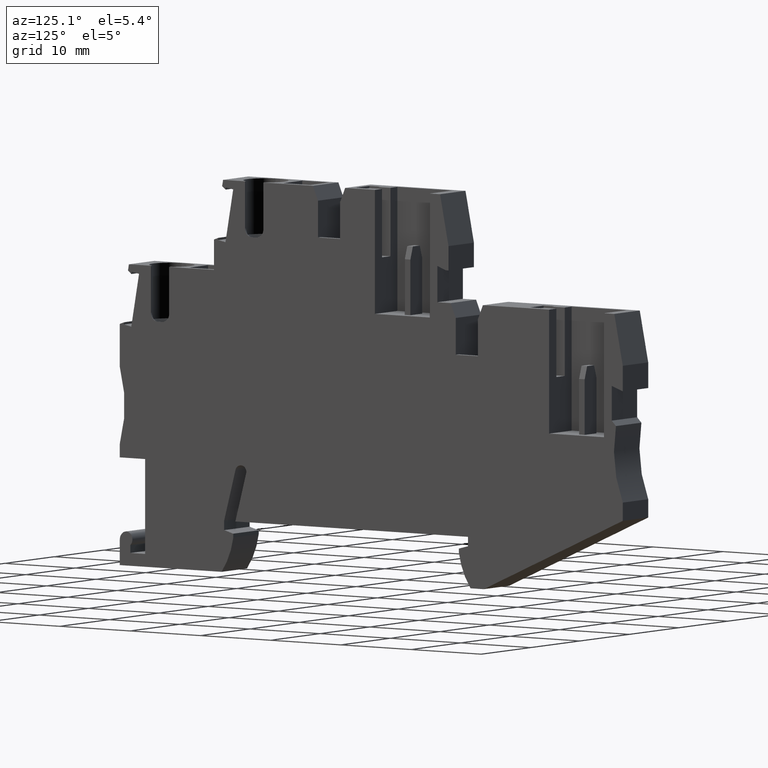
[diagram: clean part render]
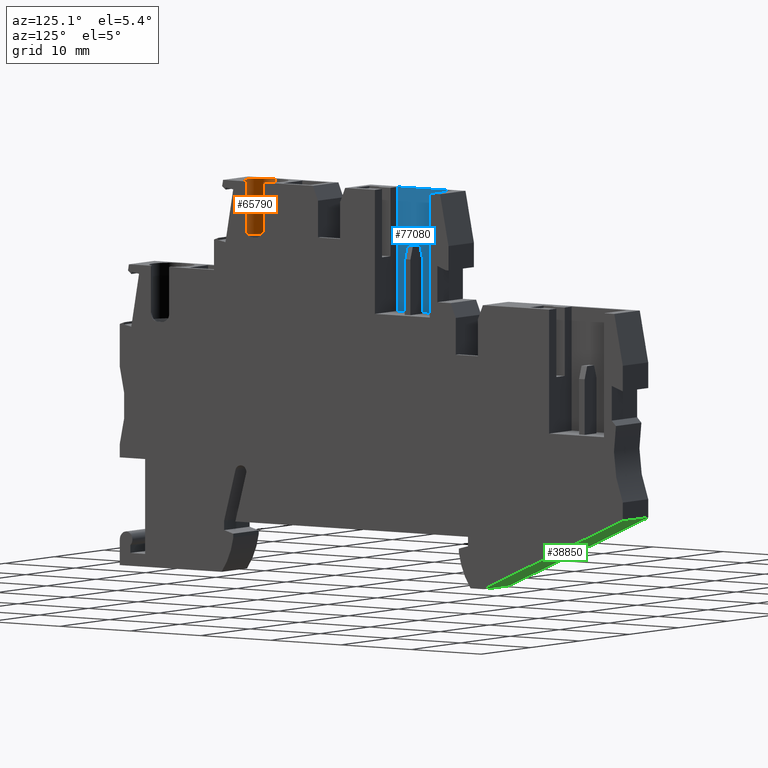
[diagram: same view with three faces highlighted in distinct colors, each labeled with its STEP entity id]
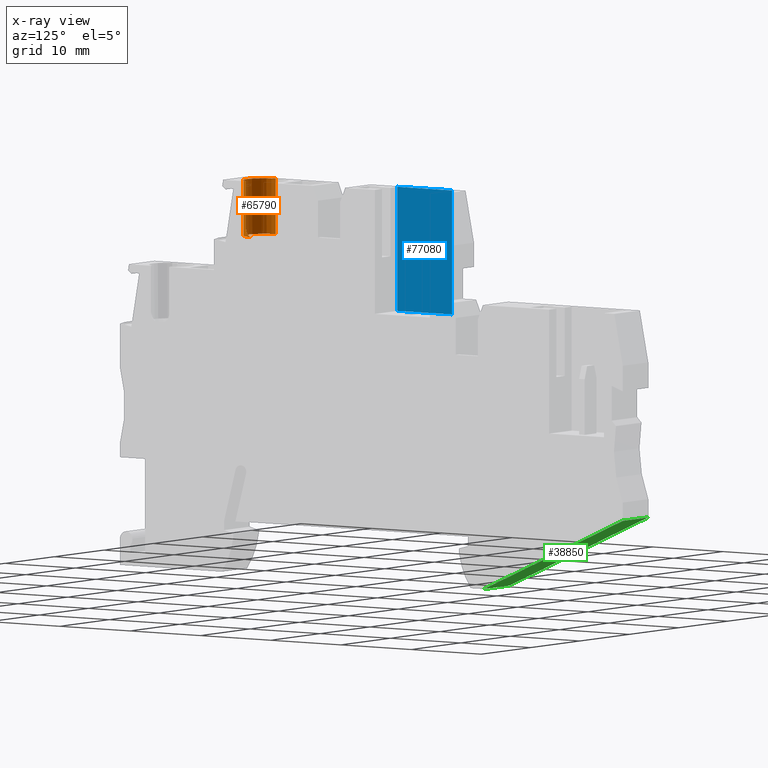
[diagram: x-ray of the same camera — body ghosted, the three highlighted faces saturated]
A machine part, auxiliary view with three faces highlighted in distinct colors.
The next image is the same camera in x-ray (body ghosted, the three faces saturated) — at least one of them is partly hidden behind the body in this view.
Their STEP definitions:

[orange] entity #65790 — the highlighted cylindrical surface (edge-blend (fillet) strip) has radius 2.4 mm, axis along (0, -0, -1).
#12680=CARTESIAN_POINT('',(154.143635451665,35.8467138221823,
53.6699999999994));
#12690=VERTEX_POINT('',#12680);
#63830=CARTESIAN_POINT('',(154.143635451665,35.8467138221823,51.27));
#63840=DIRECTION('',(0.,-1.,0.));
#63850=DIRECTION('',(-1.,0.,0.));
#63860=AXIS2_PLACEMENT_3D('',#63830,#63840,#63850);
#63870=CIRCLE('',#63860,2.40000000000001);
#63880=CARTESIAN_POINT('',(154.143635451665,35.8467138221823,48.87));
#63890=VERTEX_POINT('',#63880);
#63900=EDGE_CURVE('',#12690,#63890,#63870,.T.);
#64380=CARTESIAN_POINT('',(154.143635451664,36.8467138221824,
53.6699999999994));
#64390=DIRECTION('',(0.,0.,1.));
#64400=DIRECTION('',(1.,0.,0.));
#64410=AXIS2_PLACEMENT_3D('',#64380,#64390,#64400);
#64420=CYLINDRICAL_SURFACE('',#64410,1.);
#64430=CARTESIAN_POINT('',(154.143635451665,35.5510178221823,51.27));
#64440=DIRECTION('',(0.,1.,0.));
#64450=DIRECTION('',(-1.,0.,0.));
#64460=AXIS2_PLACEMENT_3D('',#64430,#64440,#64450);
#64470=CYLINDRICAL_SURFACE('',#64460,2.4);
#64480=CARTESIAN_POINT('',(154.143635451665,35.8467138221824,53.67));
#64490=CARTESIAN_POINT('',(154.11066647474,35.8467138221823,53.67));
#64500=CARTESIAN_POINT('',(154.077730045507,35.8483423233445,
53.6693200824832));
#64510=CARTESIAN_POINT('',(154.0448887327,35.8516012227778,
53.6679676990096));
#64520=CARTESIAN_POINT('',(154.028476506046,35.853229835996,
53.6672918544043));
#64530=CARTESIAN_POINT('',(154.01210688179,35.8552645729343,
53.6664487673962));
#64540=CARTESIAN_POINT('',(153.99581428809,35.8576997153064,
53.6654433626365));
#64550=CARTESIAN_POINT('',(153.979521675002,35.8601348605766,
53.6644379566803));
#64560=CARTESIAN_POINT('',(153.963306444248,35.8629703491068,
53.6632702648329));
#64570=CARTESIAN_POINT('',(153.947201716203,35.8661967200506,
53.6619476974993));
#64580=CARTESIAN_POINT('',(153.931104127683,35.8694216606847,
53.6606257164843));
#64590=CARTESIAN_POINT('',(153.915086202045,35.8730429286424,
53.6591466143504));
#64600=CARTESIAN_POINT('',(153.899159970897,35.8770583476434,
53.6575158092257));
#64610=CARTESIAN_POINT('',(153.883235236882,35.8810733891778,
53.6558851574037));
#64620=CARTESIAN_POINT('',(153.867408866653,35.8854811518593,
53.6541033935469));
#64630=CARTESIAN_POINT('',(153.851711195558,35.890272381896,
53.6521797221654));
#64640=CARTESIAN_POINT('',(153.83601353586,35.8950636084542,
53.6502560521806));
#64650=CARTESIAN_POINT('',(153.820444856338,35.9002382185183,
53.6481905177208));
#64660=CARTESIAN_POINT('',(153.805034580272,35.9057837238795,
53.6459944128493));
#64670=CARTESIAN_POINT('',(153.789624290894,35.9113292340308,
53.6437983060809));
#64680=CARTESIAN_POINT('',(153.774372664614,35.9172455375734,
53.6414716804355));
#64690=CARTESIAN_POINT('',(153.759307352587,35.9235172492578,
53.6390276301172));
#64700=CARTESIAN_POINT('',(153.744235722746,35.9297915910576,
53.6365825548579));
#64710=CARTESIAN_POINT('',(153.729377976049,35.9364086467791,
53.6340249413995));
#64720=CARTESIAN_POINT('',(153.714679330433,35.9433884953716,
53.6313548327299));
#64730=CARTESIAN_POINT('',(153.699977338641,35.9503699329402,
53.6286841162048));
#64740=CARTESIAN_POINT('',(153.685432282854,35.9577168956879,
53.6258999398686));
#64750=CARTESIAN_POINT('',(153.67106747842,35.9654195973811,
53.6230149830934));
#64760=CARTESIAN_POINT('',(153.642337544312,35.9808251751675,
53.6172450042235));
#64770=CARTESIAN_POINT('',(153.614331425884,35.9976548675379,
53.6110710094023));
#64780=CARTESIAN_POINT('',(153.587229719121,36.0158030803915,
53.6046118865427));
#64790=CARTESIAN_POINT('',(153.560128179613,36.0339511812458,
53.5981528035448));
#64800=CARTESIAN_POINT('',(153.533935683992,36.0534147719372,
53.5914100922132));
#64810=CARTESIAN_POINT('',(153.508813125142,36.0740556741227,
53.5845195211416));
#64820=CARTESIAN_POINT('',(153.483690372786,36.0946967352948,
53.5776288969954));
#64830=CARTESIAN_POINT('',(153.459641293583,36.1165117357039,
53.5705919902925));
#64840=CARTESIAN_POINT('',(153.436795267824,36.1393405441262,
53.5635511667513));
#64850=CARTESIAN_POINT('',(153.425368786174,36.1507584144927,
53.5600296859548));
#64860=CARTESIAN_POINT('',(153.414257621565,36.1624133382051,
53.5565120751058));
#64870=CARTESIAN_POINT('',(153.403433043169,36.1743297098944,
53.5530024954993));
#64880=CARTESIAN_POINT('',(153.392600792363,36.186254527851,
53.5494904283194));
#64890=CARTESIAN_POINT('',(153.382030972683,36.1984697031936,
53.5459781743999));
#64900=CARTESIAN_POINT('',(153.371743922596,36.2109595714282,
53.5424839861593));
#64910=CARTESIAN_POINT('',(153.35116962355,36.2359395493534,
53.5354955421278));
#64920=CARTESIAN_POINT('',(153.331729084111,36.2620187169355,
53.5285797757368));
#64930=CARTESIAN_POINT('',(153.313570086836,36.2890477122984,
53.5218862071853));
#64940=CARTESIAN_POINT('',(153.295411161358,36.316076600794,
53.5151926650988));
#64950=CARTESIAN_POINT('',(153.278536754856,36.3440511029265,
53.5087230284729));
#64960=CARTESIAN_POINT('',(153.263066645539,36.3727954983341,
53.5026214586619));
#64970=CARTESIAN_POINT('',(153.247596369229,36.4015402040248,
53.4965198229871));
#64980=CARTESIAN_POINT('',(153.233532908562,36.4310497435877,
53.4907878900435));
#64990=CARTESIAN_POINT('',(153.220960087853,36.4611361088553,
53.4855518890364));
#65000=CARTESIAN_POINT('',(153.214670228971,36.4761875437053,
53.4829324523802));
#65010=CARTESIAN_POINT('',(153.208767114614,36.4913438175261,
53.4804428540562));
#65020=CARTESIAN_POINT('',(153.203214912804,36.5067002782033,
53.4780781711904));
#65030=CARTESIAN_POINT('',(153.197662082815,36.5220584763192,
53.475713220783));
#65040=CARTESIAN_POINT('',(153.19246553917,36.5376086634623,
53.4734753101224));
#65050=CARTESIAN_POINT('',(153.187642838166,36.5533230879453,
53.4713809581566));
#65060=CARTESIAN_POINT('',(153.18282015862,36.5690374425071,
53.4692866155096));
#65070=CARTESIAN_POINT('',(153.17837144304,36.5849157457776,
53.467335907174));
#65080=CARTESIAN_POINT('',(153.174311572886,36.6009268859364,
53.465543490352));
#65090=CARTESIAN_POINT('',(153.170251713147,36.6169379850196,
53.4637510781284));
#65100=CARTESIAN_POINT('',(153.166580804574,36.6330815866822,
53.4621170257099));
#65110=CARTESIAN_POINT('',(153.163310351632,36.6493241105781,
53.4606534865755));
#65120=CARTESIAN_POINT('',(153.160039900854,36.6655666237305,
53.4591899484091));
#65130=CARTESIAN_POINT('',(153.157169988953,36.6819076873326,
53.4578969789122));
#65140=CARTESIAN_POINT('',(153.154708262072,36.6983122935999,
53.4567837144271));
#65150=CARTESIAN_POINT('',(153.152246531866,36.7147169220294,
53.455670448438));
#65160=CARTESIAN_POINT('',(153.150193040701,36.7311846964237,
53.4547369248409));
#65170=CARTESIAN_POINT('',(153.148551345824,36.7476803818477,
53.4539889244917));
#65180=CARTESIAN_POINT('',(153.14690964511,36.7641761259325,
53.4532409214825));
#65190=CARTESIAN_POINT('',(153.145679759883,36.7806993766464,
53.4526784572148));
#65200=CARTESIAN_POINT('',(153.144861218736,36.7972160279112,
53.4523038357744));
#65210=CARTESIAN_POINT('',(153.144042672657,36.8137327786933,
53.4519292120768));
#65220=CARTESIAN_POINT('',(153.143635451664,36.8302425394107,
53.4517424229267));
#65230=CARTESIAN_POINT('',(153.143635451664,36.8467138221824,
53.4517424229267));
#65240=B_SPLINE_CURVE_WITH_KNOTS('',3,(#64480,#64490,#64500,#64510,
#64520,#64530,#64540,#64550,#64560,#64570,#64580,#64590,#64600,#64610,
#64620,#64630,#64640,#64650,#64660,#64670,#64680,#64690,#64700,#64710,
#64720,#64730,#64740,#64750,#64760,#64770,#64780,#64790,#64800,#64810,
#64820,#64830,#64840,#64850,#64860,#64870,#64880,#64890,#64900,#64910,
#64920,#64930,#64940,#64950,#64960,#64970,#64980,#64990,#65000,#65010,
#65020,#65030,#65040,#65050,#65060,#65070,#65080,#65090,#65100,#65110,
#65120,#65130,#65140,#65150,#65160,#65170,#65180,#65190,#65200,#65210,
#65220,#65230),.UNSPECIFIED.,.F.,.F.,(4,3,3,3,3,3,3,3,3,3,3,3,3,3,3,3,3,
3,3,3,3,3,3,3,3,4),(0.,0.0989356926831357,0.14845786217977,
0.197936868344418,0.247395812215813,0.296944026892422,0.346523364318057,
0.396066517208509,0.445522692013702,0.495095098486007,0.594663763414727,
0.694433383674864,0.793911204421631,0.843398673863151,0.892967270207281,
0.992535371394343,1.09225157442244,1.19163259982034,1.24110346176739,
1.29071772469118,1.34050215845989,1.39038019973507,1.44027424348276,
1.49010933866209,1.5398169636435,1.58933923289506),.UNSPECIFIED.);
#65250=SURFACE_CURVE('',#65240,(#64470,#64420),.CURVE_3D.);
#65260=CARTESIAN_POINT('',(153.143635451665,36.8467138221824,
53.4517424229264));
#65270=VERTEX_POINT('',#65260);
#65280=EDGE_CURVE('',#12690,#65270,#65250,.T.);
#65470=CARTESIAN_POINT('',(154.143635451665,42.346713822168,
51.2699999999994));
#65480=DIRECTION('',(-1.1550482792444E-13,-1.,0.));
#65490=DIRECTION('',(-1.,1.1550482792444E-13,0.));
#65500=AXIS2_PLACEMENT_3D('',#65470,#65480,#65490);
#65510=CYLINDRICAL_SURFACE('',#65500,2.4);
#65520=CARTESIAN_POINT('',(154.143635451665,42.346713822168,
51.2699999999994));
#65530=DIRECTION('',(-1.1550482792444E-13,-1.,0.));
#65540=DIRECTION('',(-1.,1.1550482792444E-13,0.));
#65550=AXIS2_PLACEMENT_3D('',#65520,#65530,#65540);
#65560=CIRCLE('',#65550,2.4);
#65570=CARTESIAN_POINT('',(153.143635451665,42.3467138221681,
53.4517424229264));
#65580=VERTEX_POINT('',#65570);
#65590=CARTESIAN_POINT('',(154.143635451665,42.346713822168,
48.8699999999994));
#65600=VERTEX_POINT('',#65590);
#65610=EDGE_CURVE('',#65580,#65600,#65560,.T.);
#65620=ORIENTED_EDGE('',*,*,#65610,.F.);
#65630=CARTESIAN_POINT('',(154.143635451665,35.5510178221823,48.87));
#65640=DIRECTION('',(3.21130898074443E-44,1.,4.3387349787156E-29));
#65650=VECTOR('',#65640,1.);
#65660=LINE('',#65630,#65650);
#65670=EDGE_CURVE('',#63890,#65600,#65660,.T.);
#65680=ORIENTED_EDGE('',*,*,#65670,.T.);
#65690=ORIENTED_EDGE('',*,*,#63900,.T.);
#65700=ORIENTED_EDGE('',*,*,#65280,.F.);
#65710=CARTESIAN_POINT('',(153.143635451665,42.3467138221681,
53.4517424229264));
#65720=DIRECTION('',(1.1550482792444E-13,1.,0.));
#65730=VECTOR('',#65720,1.);
#65740=LINE('',#65710,#65730);
#65750=EDGE_CURVE('',#65270,#65580,#65740,.T.);
#65760=ORIENTED_EDGE('',*,*,#65750,.F.);
#65770=EDGE_LOOP('',(#65760,#65700,#65690,#65680,#65620));
#65780=FACE_OUTER_BOUND('',#65770,.T.);
#65790=ADVANCED_FACE('',(#65780),#65510,.F.);

[blue] entity #77080 — the highlighted planar face has unit normal (-1, 0, -0).
#70970=CARTESIAN_POINT('',(179.418635451668,42.3467138221656,49.12));
#70980=VERTEX_POINT('',#70970);
#71010=CARTESIAN_POINT('',(14.196323,42.3467138221656,49.12));
#71020=DIRECTION('',(-1.,-2.77555756154494E-17,3.15544362088405E-30));
#71030=VECTOR('',#71020,1.);
#71040=LINE('',#71010,#71030);
#71050=CARTESIAN_POINT('',(171.618635451668,42.3467138221656,49.12));
#71060=VERTEX_POINT('',#71050);
#71070=EDGE_CURVE('',#70980,#71060,#71040,.T.);
#74450=CARTESIAN_POINT('',(171.618635451668,27.8467138221787,49.12));
#74460=VERTEX_POINT('',#74450);
#74490=CARTESIAN_POINT('',(171.618635451668,27.8467138221787,49.12));
#74500=DIRECTION('',(1.,0.,0.));
#74510=VECTOR('',#74500,1.);
#74520=LINE('',#74490,#74510);
#74530=CARTESIAN_POINT('',(179.418635451668,27.8467138221787,49.12));
#74540=VERTEX_POINT('',#74530);
#74550=EDGE_CURVE('',#74460,#74540,#74520,.T.);
#76720=CARTESIAN_POINT('',(171.618635451668,-15.176449,49.1200000000004)
);
#76730=DIRECTION('',(2.77555756154498E-17,-1.,7.29054583017612E-15));
#76740=VECTOR('',#76730,1.);
#76750=LINE('',#76720,#76740);
#76760=EDGE_CURVE('',#71060,#74460,#76750,.T.);
#76920=CARTESIAN_POINT('',(179.418635451668,42.3467138221656,49.12));
#76930=DIRECTION('',(-2.95309032481669E-30,-7.29054583017612E-15,-1.));
#76940=DIRECTION('',(1.,2.77555756154494E-17,-3.15544362088405E-30));
#76950=AXIS2_PLACEMENT_3D('',#76920,#76930,#76940);
#76960=PLANE('',#76950);
#76970=ORIENTED_EDGE('',*,*,#74550,.T.);
#76980=ORIENTED_EDGE('',*,*,#76760,.T.);
#76990=ORIENTED_EDGE('',*,*,#71070,.T.);
#77000=CARTESIAN_POINT('',(179.418635451668,-15.176449,49.1200000000004)
);
#77010=DIRECTION('',(2.77555756154498E-17,-1.,7.29054583017612E-15));
#77020=VECTOR('',#77010,1.);
#77030=LINE('',#77000,#77020);
#77040=EDGE_CURVE('',#70980,#74540,#77030,.T.);
#77050=ORIENTED_EDGE('',*,*,#77040,.F.);
#77060=EDGE_LOOP('',(#77050,#76990,#76980,#76970));
#77070=FACE_OUTER_BOUND('',#77060,.T.);
#77080=ADVANCED_FACE('',(#77070),#76960,.F.);

[green] entity #38850 — the highlighted planar face has unit normal (0, 0.4163, -0.9092).
#5200=CARTESIAN_POINT('',(187.10472639837,-3.5032861778299,48.52));
#5210=VERTEX_POINT('',#5200);
#5240=CARTESIAN_POINT('',(14.196323,-82.6709506499307,48.52));
#5250=DIRECTION('',(-0.909228114586488,-0.416298253233784,0.));
#5260=VECTOR('',#5250,1.);
#5270=LINE('',#5240,#5260);
#5280=CARTESIAN_POINT('',(206.893635760428,5.55724359315391,48.52));
#5290=VERTEX_POINT('',#5280);
#5300=EDGE_CURVE('',#5290,#5210,#5270,.T.);
#6540=CARTESIAN_POINT('',(206.893635760428,5.55724359315392,
53.6699999999994));
#6550=VERTEX_POINT('',#6540);
#6650=CARTESIAN_POINT('',(206.893635760428,5.55724359315392,53.67));
#6660=DIRECTION('',(0.,0.,1.));
#6670=VECTOR('',#6660,1.);
#6680=LINE('',#6650,#6670);
#6690=EDGE_CURVE('',#5290,#6550,#6680,.T.);
#8380=CARTESIAN_POINT('',(14.196323,-82.6709506499307,53.6699999999994))
;
#8390=DIRECTION('',(-0.909228114586488,-0.416298253233784,0.));
#8400=VECTOR('',#8390,1.);
#8410=LINE('',#8380,#8400);
#8420=CARTESIAN_POINT('',(187.10472639837,-3.5032861778299,
53.6699999999994));
#8430=VERTEX_POINT('',#8420);
#8440=EDGE_CURVE('',#6550,#8430,#8410,.T.);
#38580=CARTESIAN_POINT('',(187.10472639837,-3.5032861778299,53.67));
#38590=DIRECTION('',(0.,0.,-1.));
#38600=VECTOR('',#38590,1.);
#38610=LINE('',#38580,#38600);
#38620=EDGE_CURVE('',#8430,#5210,#38610,.T.);
#38740=CARTESIAN_POINT('',(187.501232266896,-3.32174240700277,
53.6699999999994));
#38750=DIRECTION('',(0.416298253233784,-0.909228114586488,0.));
#38760=DIRECTION('',(-0.909228114586488,-0.416298253233784,0.));
#38770=AXIS2_PLACEMENT_3D('',#38740,#38750,#38760);
#38780=PLANE('',#38770);
#38790=ORIENTED_EDGE('',*,*,#6690,.T.);
#38800=ORIENTED_EDGE('',*,*,#5300,.F.);
#38810=ORIENTED_EDGE('',*,*,#38620,.T.);
#38820=ORIENTED_EDGE('',*,*,#8440,.T.);
#38830=EDGE_LOOP('',(#38820,#38810,#38800,#38790));
#38840=FACE_OUTER_BOUND('',#38830,.T.);
#38850=ADVANCED_FACE('',(#38840),#38780,.T.);